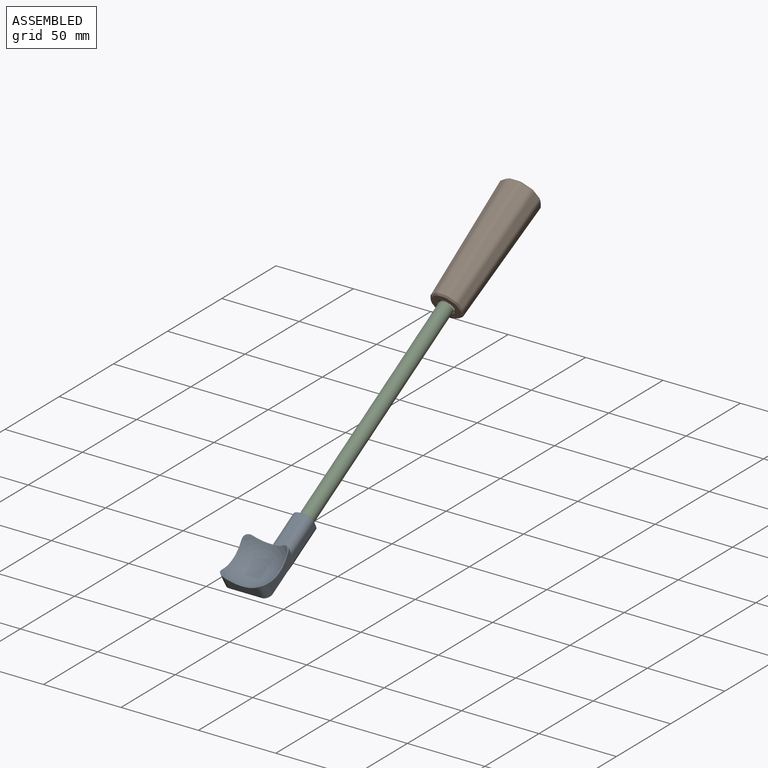
[diagram: assembled view]
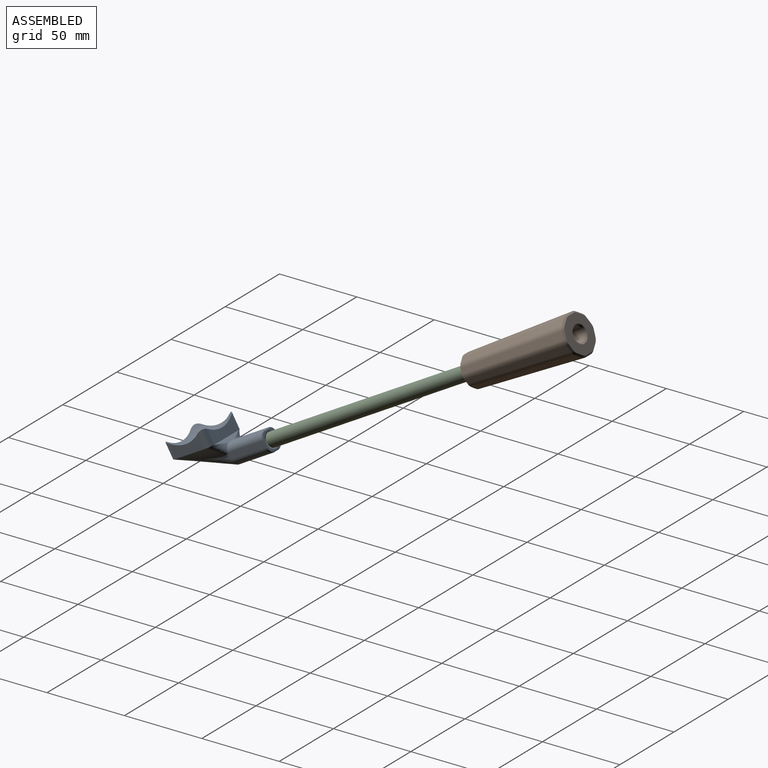
[diagram: assembled view, second angle]
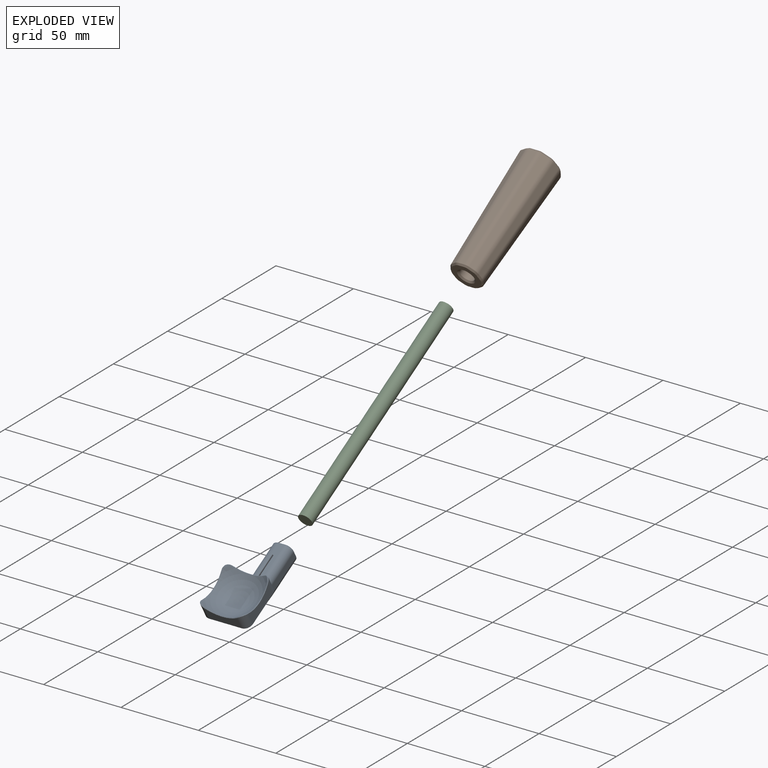
[diagram: exploded view]
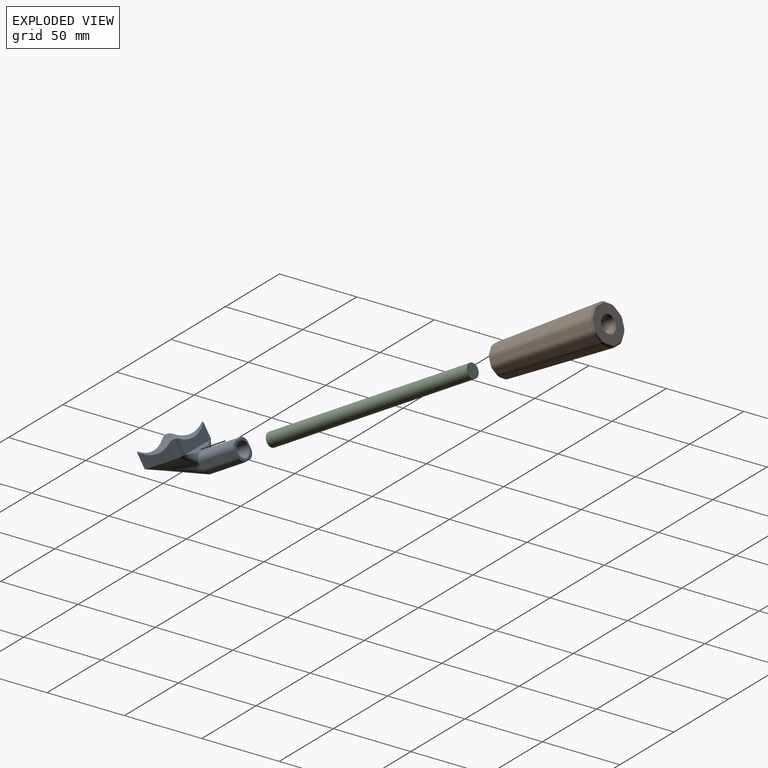
[diagram: exploded view, second angle]
ASSEMBLY  parts=3 mates=2
PART A: 41 faces, bbox 37.6x63.2x27.5 mm
  f0: plane 21x8.89mm, normal (0,1,0), area 142.3mm2, adj f1,f7,f19,f30
  f1: cylinder r=4.5mm len=8.89mm, axis (0,0,-1), area 62.9mm2, adj f0,f2,f18,f28
  f2: plane 22.75x10.64mm, normal (-1,0,0), area 142.3mm2, adj f1,f3,f18,f26
  f3: cylinder r=4.5mm len=8.89mm, axis (0,0,-1), area 62.9mm2, adj f2,f4,f18,f24
  f4: plane 21x8.89mm, normal (0,-1,0), area 142.3mm2, adj f3,f5,f21,f25
  f5: cylinder r=4.5mm len=8.89mm, axis (0,0,-1), area 62.9mm2, adj f4,f6,f20,f27
  f6: plane 22.75x10.64mm, normal (1,0,0), area 142.3mm2, adj f5,f7,f20,f29
  f7: cylinder r=4.5mm len=8.89mm, axis (0,0,-1), area 62.9mm2, adj f0,f6,f20,f31
  f8: sphere r=24mm, area 952.4mm2, adj f24,f25,f26,f27,f28,f29,f30,f31
  f9: plane 25.5x4mm, normal (0,0,1), area 102mm2, adj f10,f16,f21,f39
  f10: cylinder r=4.5mm len=25.5mm, axis (0,1,0), area 180.2mm2, adj f9,f11,f18,f37
  f11: plane 25.77x4.27mm, normal (-1,0,0), area 102mm2, adj f10,f12,f18,f35
  f12: cylinder r=4.5mm len=25.5mm, axis (0,1,0), area 180.2mm2, adj f11,f13,f18,f33
  f13: plane 25.5x4mm, normal (0,0,-1), area 102mm2, adj f12,f14,f19,f34
  f14: cylinder r=4.5mm len=25.5mm, axis (0,1,0), area 180.2mm2, adj f13,f15,f20,f36
  f15: plane 25.77x4.27mm, normal (1,0,0), area 102mm2, adj f14,f16,f20,f38
  f16: cylinder r=4.5mm len=25.5mm, axis (0,1,0), area 180.2mm2, adj f9,f15,f20,f40
  f17: plane 12x12mm, normal (0,-1,0), area 51.7mm2, adj f32,f33,f34,f35,f36,f37,f38,f39
  f18: bspline ~32.5x15.5mm, area 420.3mm2, adj f1,f2,f3,f10,f11,f12,f19,f21
  f19: plane 32.5x21mm, normal (0,0.43,-0.9), area 450.1mm2, adj f0,f13,f18,f20
  f20: bspline ~32.5x25.9mm, area 420.3mm2, adj f5,f6,f7,f14,f15,f16,f19,f21
  f21: plane 21x2.5mm, normal (0,-0.71,0.71), area 44.2mm2, adj f4,f9,f18,f20
  f22: cylinder r=4.5mm len=25.5mm, axis (0,1,0), area 721mm2, adj f23,f32
  f23: plane 9x9mm, normal (0,-1,0), area 63.6mm2, adj f22
  f24: bspline ~4.62x4.61mm, area 3.3mm2, adj f3,f8,f25,f26
  f25: cone r=19.04mm half-angle=26.2deg, axis (0,-1,0), area 9.5mm2, adj f4,f8,f24,f27
  f26: cone r=19.23mm half-angle=26.2deg, axis (-1,0,0), area 9.5mm2, adj f2,f8,f24,f28
  f27: bspline ~4.62x4.61mm, area 3.3mm2, adj f5,f8,f25,f29
  f28: bspline ~4.62x4.61mm, area 3.3mm2, adj f1,f8,f26,f30
  f29: cone r=19.04mm half-angle=26.2deg, axis (1,0,0), area 9.5mm2, adj f6,f8,f27,f31
  f30: cone r=19.23mm half-angle=26.2deg, axis (0,1,0), area 9.5mm2, adj f0,f8,f28,f31
  f31: bspline ~4.62x4.61mm, area 3.3mm2, adj f7,f8,f29,f30
  f32: cone r=5mm half-angle=45deg, axis (0,-1,0), area 21.1mm2, adj f17,f22
  f33: cone r=4mm half-angle=45deg, axis (0,1,0), area 4.7mm2, adj f12,f17,f34,f35
  f34: plane 4x0.5mm, normal (0,-0.71,-0.71), area 2.8mm2, adj f13,f17,f33,f36
  f35: plane 4x0.5mm, normal (-0.71,-0.71,0), area 2.8mm2, adj f11,f17,f33,f37
  f36: cone r=4mm half-angle=45deg, axis (0,1,0), area 4.7mm2, adj f14,f17,f34,f38
  f37: cone r=4mm half-angle=45deg, axis (0,1,0), area 4.7mm2, adj f10,f17,f35,f39
  f38: plane 4x0.5mm, normal (0.71,-0.71,0), area 2.8mm2, adj f15,f17,f36,f40
  f39: plane 4x0.5mm, normal (0,-0.71,0.71), area 2.8mm2, adj f9,f17,f37,f40
  f40: cone r=4mm half-angle=45deg, axis (0,1,0), area 4.7mm2, adj f16,f17,f38,f39
PART B: 65 faces, bbox 25.9x25x80 mm
  f0: plane 18.76x18.09mm, normal (0,0,1), area 163.1mm2, adj f44,f45,f46,f47,f48,f49,f50,f51
  f1: plane 23.89x22.96mm, normal (0,0,-1), area 325.4mm2, adj f23,f24,f25,f26,f27,f28,f29,f30
  f2: plane 78x4.62mm, normal (0.95,-0.31,0.03), area 317mm2, adj f20,f21,f42,f56
  f3: plane 78x4.72mm, normal (0.59,-0.81,0.03), area 317mm2, adj f19,f20,f38,f52
  f4: plane 78x4.85mm, normal (0,-1,0.03), area 317mm2, adj f18,f19,f34,f48
  f5: plane 78x4.72mm, normal (-0.59,-0.81,0.03), area 317mm2, adj f17,f18,f30,f44
  f6: plane 78x4.62mm, normal (-0.95,-0.31,0.03), area 317mm2, adj f16,f17,f26,f47
  f7: plane 78x4.62mm, normal (-0.95,0.31,0.03), area 317mm2, adj f15,f16,f25,f51
  f8: plane 78x4.72mm, normal (-0.59,0.81,0.03), area 317mm2, adj f14,f15,f29,f55
  f9: plane 78x4.85mm, normal (0,1,0.03), area 317mm2, adj f13,f14,f33,f59
  f10: plane 78x4.72mm, normal (0.59,0.81,0.03), area 317mm2, adj f12,f13,f37,f63
  f11: plane 78x4.62mm, normal (0.95,0.31,0.03), area 317mm2, adj f12,f21,f41,f60
  f12: cylinder r=5mm len=78.01mm, axis (0.03,0.02,-1), area 245.1mm2, adj f10,f11,f39,f62
  f13: cylinder r=5mm len=78.01mm, axis (0.01,0.03,-1), area 245.1mm2, adj f9,f10,f35,f61
  f14: cylinder r=5mm len=78.01mm, axis (-0.01,0.03,-1), area 245.1mm2, adj f8,f9,f31,f57
  f15: cylinder r=5mm len=78.01mm, axis (-0.03,0.02,-1), area 245.1mm2, adj f7,f8,f27,f53
  f16: cylinder r=5mm len=78.01mm, axis (-0.03,0,-1), area 245.1mm2, adj f6,f7,f24,f49
  f17: cylinder r=5mm len=78.01mm, axis (-0.03,-0.02,-1), area 245.1mm2, adj f5,f6,f28,f45
  f18: cylinder r=5mm len=78.01mm, axis (-0.01,-0.03,-1), area 245.1mm2, adj f4,f5,f32,f46
  f19: cylinder r=5mm len=78.01mm, axis (0.01,-0.03,-1), area 245.1mm2, adj f3,f4,f36,f50
  f20: cylinder r=5mm len=78.01mm, axis (0.03,-0.02,-1), area 245.1mm2, adj f2,f3,f40,f54
  f21: cylinder r=5mm len=78.01mm, axis (0.03,0,-1), area 245.1mm2, adj f2,f11,f43,f58
  f22: cylinder r=4.65mm len=78mm, axis (0,0,1), area 2278.9mm2, adj f23,f64
  f23: cone r=5.65mm half-angle=45deg, axis (0,0,-1), area 45.8mm2, adj f1,f22
  f24: bspline ~3.09x1.28mm, area 4.1mm2, adj f1,f16,f25,f26
  f25: plane 4.93x2.45mm, normal (-0.68,0.22,-0.7), area 7mm2, adj f1,f7,f24,f27
  f26: plane 4.93x2.45mm, normal (-0.68,-0.22,-0.7), area 7mm2, adj f1,f6,f24,f28
  f27: bspline ~2.81x2.4mm, area 4.1mm2, adj f1,f15,f25,f29
  f28: bspline ~2.81x2.4mm, area 4.1mm2, adj f1,f17,f26,f30
  f29: plane 4.52x3.66mm, normal (-0.42,0.58,-0.7), area 7mm2, adj f1,f8,f27,f31
  f30: plane 4.52x3.66mm, normal (-0.42,-0.58,-0.7), area 7mm2, adj f1,f5,f28,f32
  f31: bspline ~2.94x1.77mm, area 4.1mm2, adj f1,f14,f29,f33
  f32: bspline ~2.94x1.77mm, area 4.1mm2, adj f1,f18,f30,f34
  f33: plane 4.85x1.03mm, normal (0,0.72,-0.7), area 7mm2, adj f1,f9,f31,f35
  f34: plane 4.85x1.03mm, normal (0,-0.72,-0.7), area 7mm2, adj f1,f4,f32,f36
  f35: bspline ~2.94x1.77mm, area 4.1mm2, adj f1,f13,f33,f37
  f36: bspline ~2.94x1.77mm, area 4.1mm2, adj f1,f19,f34,f38
  f37: plane 4.52x3.66mm, normal (0.42,0.58,-0.7), area 7mm2, adj f1,f10,f35,f39
  f38: plane 4.52x3.66mm, normal (0.42,-0.58,-0.7), area 7mm2, adj f1,f3,f36,f40
  f39: bspline ~2.81x2.4mm, area 4.1mm2, adj f1,f12,f37,f41
  f40: bspline ~2.81x2.4mm, area 4.1mm2, adj f1,f20,f38,f42
  f41: plane 4.93x2.45mm, normal (0.68,0.22,-0.7), area 7mm2, adj f1,f11,f39,f43
  f42: plane 4.93x2.45mm, normal (0.68,-0.22,-0.7), area 7mm2, adj f1,f2,f40,f43
  f43: bspline ~3.09x1.28mm, area 4.1mm2, adj f1,f21,f41,f42
  f44: plane 3.23x2.73mm, normal (-0.41,-0.56,0.72), area 4.6mm2, adj f0,f5,f45,f46
  f45: bspline ~2.81x2.4mm, area 3.9mm2, adj f0,f17,f44,f47
  f46: bspline ~2.94x1.77mm, area 3.9mm2, adj f0,f18,f44,f48
  f47: plane 3.42x1.96mm, normal (-0.66,-0.22,0.72), area 4.6mm2, adj f0,f6,f45,f49
  f48: plane 3.27x1mm, normal (0,-0.7,0.72), area 4.6mm2, adj f0,f4,f46,f50
  f49: bspline ~3.09x1.28mm, area 3.9mm2, adj f0,f16,f47,f51
  f50: bspline ~2.94x1.77mm, area 3.9mm2, adj f0,f19,f48,f52
  f51: plane 3.42x1.96mm, normal (-0.66,0.22,0.72), area 4.6mm2, adj f0,f7,f49,f53
  f52: plane 3.23x2.73mm, normal (0.41,-0.56,0.72), area 4.6mm2, adj f0,f3,f50,f54
  f53: bspline ~2.81x2.4mm, area 3.9mm2, adj f0,f15,f51,f55
  f54: bspline ~2.81x2.4mm, area 3.9mm2, adj f0,f20,f52,f56
  f55: plane 3.23x2.73mm, normal (-0.41,0.56,0.72), area 4.6mm2, adj f0,f8,f53,f57
  f56: plane 3.42x1.96mm, normal (0.66,-0.22,0.72), area 4.6mm2, adj f0,f2,f54,f58
  f57: bspline ~2.94x1.77mm, area 3.9mm2, adj f0,f14,f55,f59
  f58: bspline ~3.09x1.28mm, area 3.9mm2, adj f0,f21,f56,f60
  f59: plane 3.27x1mm, normal (0,0.7,0.72), area 4.6mm2, adj f0,f9,f57,f61
  f60: plane 3.42x1.96mm, normal (0.66,0.22,0.72), area 4.6mm2, adj f0,f11,f58,f62
  f61: bspline ~2.94x1.77mm, area 3.9mm2, adj f0,f13,f59,f63
  f62: bspline ~2.81x2.4mm, area 3.9mm2, adj f0,f12,f60,f63
  f63: plane 3.23x2.73mm, normal (0.41,0.56,0.72), area 4.6mm2, adj f0,f10,f61,f62
  f64: cone r=4.65mm half-angle=45deg, axis (0,0,1), area 45.8mm2, adj f0,f22
PART C: 3 faces, bbox 9x9x150 mm
  f0: cylinder r=4.5mm len=150mm, axis (0,0,-1), area 4241.2mm2, adj f1,f2
  f1: plane 9x9mm, normal (0,0,1), area 63.6mm2, adj f0
  f2: plane 9x9mm, normal (0,0,-1), area 63.6mm2, adj f0
PLACE A rot(axis=(0,0.26,-0.97),180deg) t=(0,-149.17,-93.63)mm
PLACE B rot(axis=(1,0,0),120deg) t=(0,69.28,40)mm fixed
PLACE C rot(axis=(-1,0,0),60deg) t=(0,-129.9,-75)mm
MATE fastened C.f0 <-> B.f22  axis (0,0.87,0.5) through (0,0,0)mm
MATE revolute A.f22 <-> C.f0  axis (0,-0.87,-0.5) through (0,-129.9,-75)mm
